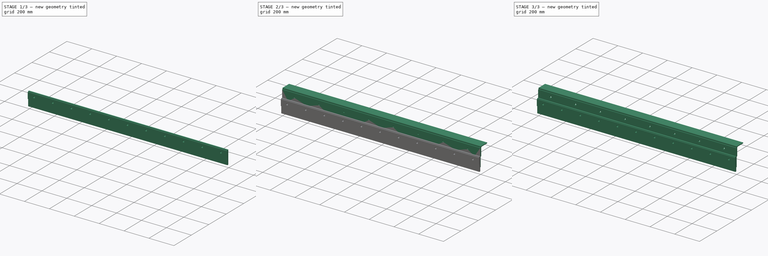
[diagram: build sequence overview — one tinted view per stage of 3, left to right]
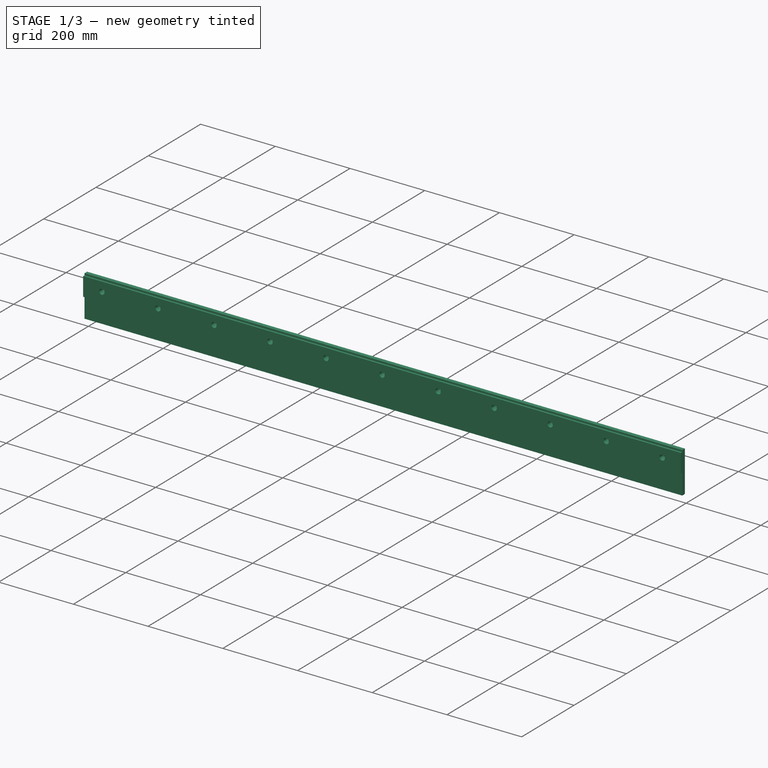
[diagram: stage 1 of 3 — iso view after this stage's code; geometry added in this stage tinted green]
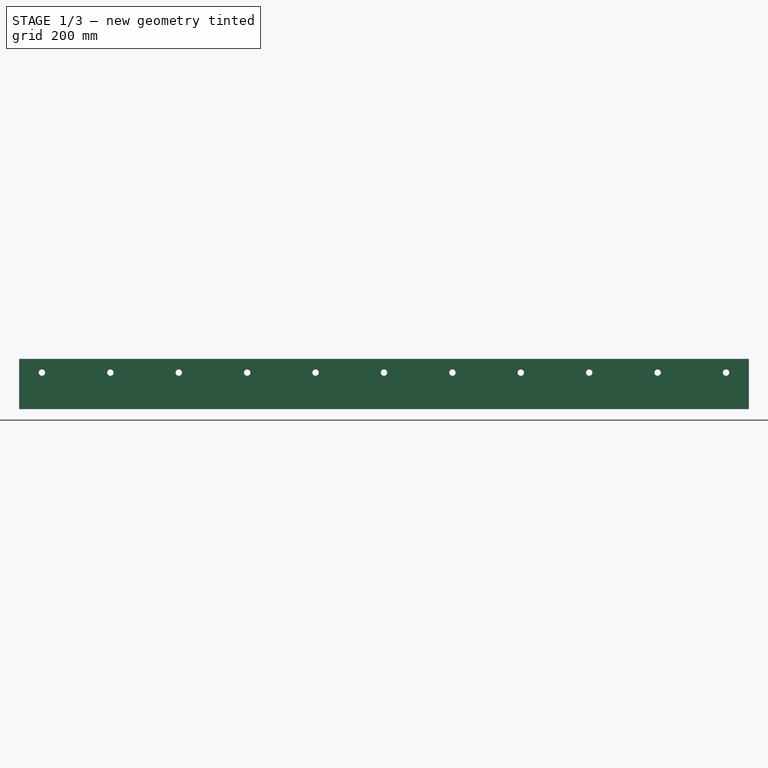
[diagram: stage 1 of 3 — front view after this stage's code; geometry added in this stage tinted green]
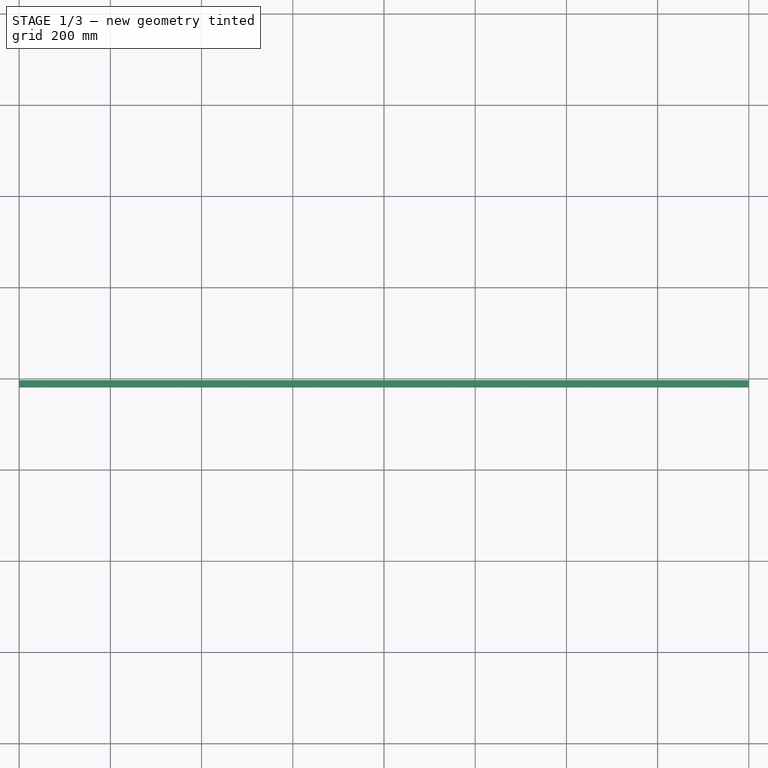
[diagram: stage 1 of 3 — top view after this stage's code; geometry added in this stage tinted green]
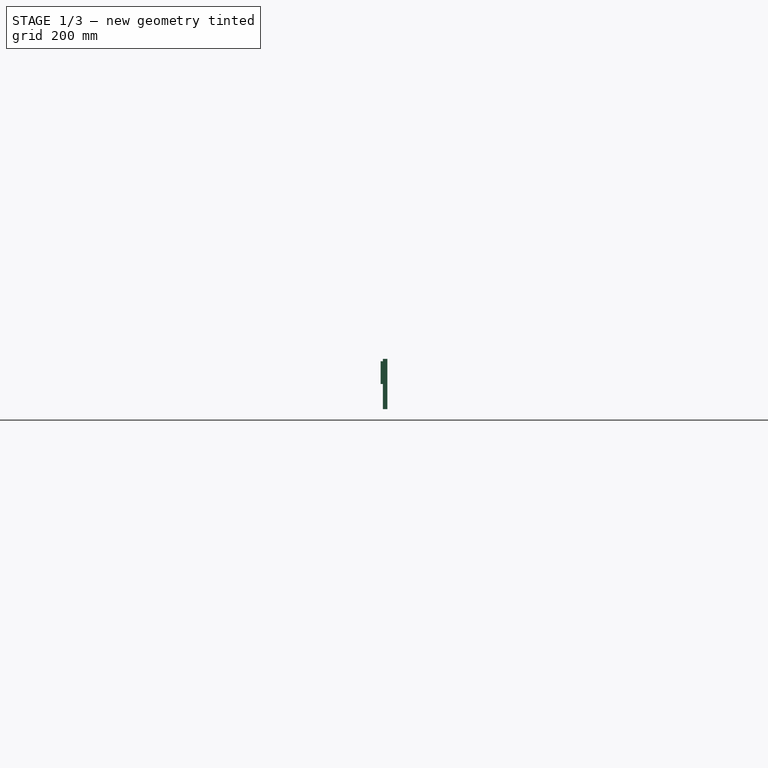
[diagram: stage 1 of 3 — right view after this stage's code; geometry added in this stage tinted green]
FCSTD DOCUMENT  (FreeCAD 0.21R33771 (Git))
Label: brade
License: All rights reserved
objects: Part::Extrusion×5, Sketcher::SketchObject×4, Part::FeaturePython×1, Part::Cut×1, App::Part×1
note: 11 computed .brp shape members not serialized (recipe doc carries the construction recipe); baked Part::Feature solids carry a one-line shape summary decoded from their .brp

FEATURE [Sketcher::SketchObject] Sketch002
  FullyConstrained = true
  Placement = pos=(0,0,0) rot=(1,0,0;1.5708rad)
  sketch-geometry (26):
    g0: LineSegment StartX=-800 StartY=-55 StartZ=0 EndX=-800 EndY=55 EndZ=0
    g1: LineSegment StartX=-800 StartY=55 StartZ=0 EndX=800 EndY=55 EndZ=0
    g2: LineSegment StartX=800 StartY=55 StartZ=0 EndX=800 EndY=-55 EndZ=0
    g3: LineSegment StartX=800 StartY=-55 StartZ=0 EndX=-800 EndY=-55 EndZ=0
    g4: GeomPoint X=0 Y=0 Z=0
    g5: Circle CenterX=-750 CenterY=25 CenterZ=0 NormalX=0 NormalY=0 NormalZ=1 AngleXU=0 Radius=7
    g6: Circle CenterX=-600 CenterY=25 CenterZ=0 NormalX=0 NormalY=0 NormalZ=1 AngleXU=0 Radius=7
    g7: LineSegment StartX=-750 StartY=25 StartZ=0 EndX=-600 EndY=25 EndZ=0
    g8: Circle CenterX=-450 CenterY=25 CenterZ=0 NormalX=0 NormalY=0 NormalZ=1 AngleXU=0 Radius=7
    g9: LineSegment StartX=-600 StartY=25 StartZ=0 EndX=-450 EndY=25 EndZ=0
    g10: Circle CenterX=-300 CenterY=25 CenterZ=0 NormalX=0 NormalY=0 NormalZ=1 AngleXU=0 Radius=7
    g11: LineSegment StartX=-450 StartY=25 StartZ=0 EndX=-300 EndY=25 EndZ=0
    g12: Circle CenterX=-150 CenterY=25 CenterZ=0 NormalX=0 NormalY=0 NormalZ=1 AngleXU=0 Radius=7
    g13: LineSegment StartX=-300 StartY=25 StartZ=0 EndX=-150 EndY=25 EndZ=0
    g14: Circle CenterX=1.11421e-10 CenterY=25 CenterZ=0 NormalX=0 NormalY=0 NormalZ=1 AngleXU=0 Radius=7
    g15: LineSegment StartX=-150 StartY=25 StartZ=0 EndX=1.11413e-10 EndY=25 EndZ=0
    g16: Circle CenterX=150 CenterY=25 CenterZ=0 NormalX=0 NormalY=0 NormalZ=1 AngleXU=0 Radius=7
    g17: LineSegment StartX=1.11421e-10 StartY=25 StartZ=0 EndX=150 EndY=25 EndZ=0
    g18: Circle CenterX=300 CenterY=25 CenterZ=0 NormalX=0 NormalY=0 NormalZ=1 AngleXU=0 Radius=7
    g19: LineSegment StartX=150 StartY=25 StartZ=0 EndX=300 EndY=25 EndZ=0
    g20: Circle CenterX=450 CenterY=25 CenterZ=0 NormalX=0 NormalY=0 NormalZ=1 AngleXU=0 Radius=7
    g21: LineSegment StartX=300 StartY=25 StartZ=0 EndX=450 EndY=25 EndZ=0
    g22: Circle CenterX=600 CenterY=25 CenterZ=0 NormalX=0 NormalY=0 NormalZ=1 AngleXU=0 Radius=7
    g23: LineSegment StartX=450 StartY=25 StartZ=0 EndX=600 EndY=25 EndZ=0
    g24: Circle CenterX=750 CenterY=25 CenterZ=0 NormalX=0 NormalY=0 NormalZ=1 AngleXU=0 Radius=7
    g25: LineSegment StartX=600 StartY=25 StartZ=0 EndX=750 EndY=25 EndZ=0
  constraints (65):
    c: Coincident(g0,g1)
    c: Coincident(g1,g2)
    c: Coincident(g2,g3)
    c: Coincident(g3,g0)
    c: Horizontal(g1)
    c: Horizontal(g3)
    c: Vertical(g0)
    c: Vertical(g2)
    c: Symmetric(g1,g0,g4)
    c: Coincident(g4,g-1)
    c: DistanceX(g1,g1) = 1600
    c: DistanceY(g2,g2) = 110
    c: Diameter(g5) = 14
    c: Distance(g5,g1) = 30
    c: Distance(g5,g0) = 50
    c: Equal(g5,g6) = 14
    c: Coincident(g5,g7)
    c: Coincident(g6,g7)
    c: Distance(g7) = 150
    c: Angle(g7) = 0
    c: Equal(g5,g8) = 14
    c: Coincident(g6,g9)
    c: Coincident(g8,g9)
    c: Equal(g7,g9)
    c: Parallel(g9,g7)
    c: Equal(g5,g10) = 14
    c: Coincident(g8,g11)
    c: Coincident(g10,g11)
    c: Equal(g7,g11)
    c: Parallel(g11,g7)
    c: Equal(g5,g12) = 14
    c: Coincident(g10,g13)
    c: Coincident(g12,g13)
    c: Equal(g7,g13)
    c: Parallel(g13,g7)
    c: Equal(g5,g14) = 14
    c: Coincident(g12,g15)
    c: Coincident(g14,g15)
    c: Equal(g7,g15)
    c: Parallel(g15,g7)
    c: Equal(g5,g16) = 14
    c: Coincident(g14,g17)
    c: Coincident(g16,g17)
    c: Equal(g7,g17)
    c: Parallel(g17,g7)
    c: Equal(g5,g18) = 14
    c: Coincident(g16,g19)
    c: Coincident(g18,g19)
    c: Equal(g7,g19)
    c: Parallel(g19,g7)
    c: Equal(g5,g20) = 14
    c: Coincident(g18,g21)
    c: Coincident(g20,g21)
    c: Equal(g7,g21)
    c: Parallel(g21,g7)
    c: Equal(g5,g22) = 14
    c: Coincident(g20,g23)
    c: Coincident(g22,g23)
    c: Equal(g7,g23)
    c: Parallel(g23,g7)
    c: Equal(g5,g24) = 14
    c: Coincident(g22,g25)
    c: Coincident(g24,g25)
    c: Equal(g7,g25)
    c: Parallel(g25,g7)
FEATURE [Part::Extrusion] Extrude003  label="rubberPlate"
  Base = -> Sketch002
  Dir = (0,-1,-3e-16)
  DirMode = 2
  FaceMakerClass = Part::FaceMakerBullseye
  LengthFwd = 10
  LengthRev = 0
  Placement = pos=(2.274e-13,-5,-125.45) rot=(0,0,1;0rad)
  Solid = true
  Symmetric = false
FEATURE [Sketcher::SketchObject] Sketch003
  FullyConstrained = true
  Placement = pos=(0,0,0) rot=(1,0,0;1.5708rad)
  sketch-geometry (26):
    g0: LineSegment StartX=-800 StartY=-25 StartZ=0 EndX=-800 EndY=25 EndZ=0
    g1: LineSegment StartX=-800 StartY=25 StartZ=0 EndX=800 EndY=25 EndZ=0
    g2: LineSegment StartX=800 StartY=25 StartZ=0 EndX=800 EndY=-25 EndZ=0
    g3: LineSegment StartX=800 StartY=-25 StartZ=0 EndX=-800 EndY=-25 EndZ=0
    g4: GeomPoint X=0 Y=0 Z=0
    g5: Circle CenterX=-750 CenterY=0 CenterZ=0 NormalX=0 NormalY=0 NormalZ=1 AngleXU=0 Radius=7
    g6: Circle CenterX=-600 CenterY=0 CenterZ=0 NormalX=0 NormalY=0 NormalZ=1 AngleXU=0 Radius=7
    g7: LineSegment StartX=-750 StartY=0 StartZ=0 EndX=-600 EndY=0 EndZ=0
    g8: Circle CenterX=-450 CenterY=0 CenterZ=0 NormalX=0 NormalY=0 NormalZ=1 AngleXU=0 Radius=7
    g9: LineSegment StartX=-600 StartY=0 StartZ=0 EndX=-450 EndY=0 EndZ=0
    g10: Circle CenterX=-300 CenterY=0 CenterZ=0 NormalX=0 NormalY=0 NormalZ=1 AngleXU=0 Radius=7
    g11: LineSegment StartX=-450 StartY=0 StartZ=0 EndX=-300 EndY=0 EndZ=0
    g12: Circle CenterX=-150 CenterY=0 CenterZ=0 NormalX=0 NormalY=0 NormalZ=1 AngleXU=0 Radius=7
    g13: LineSegment StartX=-300 StartY=0 StartZ=0 EndX=-150 EndY=0 EndZ=0
    g14: Circle CenterX=5.68e-14 CenterY=0 CenterZ=0 NormalX=0 NormalY=0 NormalZ=1 AngleXU=0 Radius=7
    g15: LineSegment StartX=-150 StartY=0 StartZ=0 EndX=5.68e-14 EndY=0 EndZ=0
    g16: Circle CenterX=150 CenterY=0 CenterZ=0 NormalX=0 NormalY=0 NormalZ=1 AngleXU=0 Radius=7
    g17: LineSegment StartX=5.68e-14 StartY=0 StartZ=0 EndX=150 EndY=0 EndZ=0
    g18: Circle CenterX=300 CenterY=0 CenterZ=0 NormalX=0 NormalY=0 NormalZ=1 AngleXU=0 Radius=7
    g19: LineSegment StartX=150 StartY=0 StartZ=0 EndX=300 EndY=0 EndZ=0
    g20: Circle CenterX=450 CenterY=0 CenterZ=0 NormalX=0 NormalY=0 NormalZ=1 AngleXU=0 Radius=7
    g21: LineSegment StartX=300 StartY=0 StartZ=0 EndX=450 EndY=0 EndZ=0
    g22: Circle CenterX=600 CenterY=0 CenterZ=0 NormalX=0 NormalY=0 NormalZ=1 AngleXU=0 Radius=7
    g23: LineSegment StartX=450 StartY=0 StartZ=0 EndX=600 EndY=0 EndZ=0
    g24: Circle CenterX=750 CenterY=0 CenterZ=0 NormalX=0 NormalY=0 NormalZ=1 AngleXU=0 Radius=7
    g25: LineSegment StartX=600 StartY=0 StartZ=0 EndX=750 EndY=0 EndZ=0
  constraints (65):
    c: Coincident(g0,g1)
    c: Coincident(g1,g2)
    c: Coincident(g2,g3)
    c: Coincident(g3,g0)
    c: Horizontal(g1)
    c: Horizontal(g3)
    c: Vertical(g0)
    c: Vertical(g2)
    c: Symmetric(g1,g0,g4)
    c: Coincident(g4,g-1)
    c: DistanceX(g1,g1) = 1600
    c: DistanceY(g2,g2) = 50
    c: PointOnObject(g5,g-1)
    c: Diameter(g5) = 14
    c: DistanceX(g0,g5) = 50
    c: Equal(g5,g6) = 14
    c: Coincident(g5,g7)
    c: Coincident(g6,g7)
    c: Distance(g7) = 150
    c: Angle(g7) = 0
    c: Equal(g5,g8) = 14
    c: Coincident(g6,g9)
    c: Coincident(g8,g9)
    c: Equal(g7,g9)
    c: Parallel(g9,g7)
    c: Equal(g5,g10) = 14
    c: Coincident(g8,g11)
    c: Coincident(g10,g11)
    c: Equal(g7,g11)
    c: Parallel(g11,g7)
    c: Equal(g5,g12) = 14
    c: Coincident(g10,g13)
    c: Coincident(g12,g13)
    c: Equal(g7,g13)
    c: Parallel(g13,g7)
    c: Equal(g5,g14) = 14
    c: Coincident(g12,g15)
    c: Coincident(g14,g15)
    c: Equal(g7,g15)
    c: Parallel(g15,g7)
    c: Equal(g5,g16) = 14
    c: Coincident(g14,g17)
    c: Coincident(g16,g17)
    c: Equal(g7,g17)
    c: Parallel(g17,g7)
    c: Equal(g5,g18) = 14
    c: Coincident(g16,g19)
    c: Coincident(g18,g19)
    c: Equal(g7,g19)
    c: Parallel(g19,g7)
    c: Equal(g5,g20) = 14
    c: Coincident(g18,g21)
    c: Coincident(g20,g21)
    c: Equal(g7,g21)
    c: Parallel(g21,g7)
    c: Equal(g5,g22) = 14
    c: Coincident(g20,g23)
    c: Coincident(g22,g23)
    c: Equal(g7,g23)
    c: Parallel(g23,g7)
    c: Equal(g5,g24) = 14
    c: Coincident(g22,g25)
    c: Coincident(g24,g25)
    c: Equal(g7,g25)
    c: Parallel(g25,g7)
FEATURE [Part::Extrusion] Extrude004  label="plate_2"
  Base = -> Sketch003
  Dir = (0,-1,-3e-16)
  DirMode = 2
  FaceMakerClass = Part::FaceMakerBullseye
  LengthFwd = 5
  LengthRev = 0
  Placement = pos=(0,-15,-100.45) rot=(0,0,1;0rad)
  Solid = true
  Symmetric = false
FEATURE [App::Part] Part  label="blade"
  Group = -> [AngleSteel,Extrude,Extrude001,Sketch,Cut,Sketch001,Extrude002,Sketch002,Extrude003,Sketch003,Extrude004]
  Origin = -> Origin
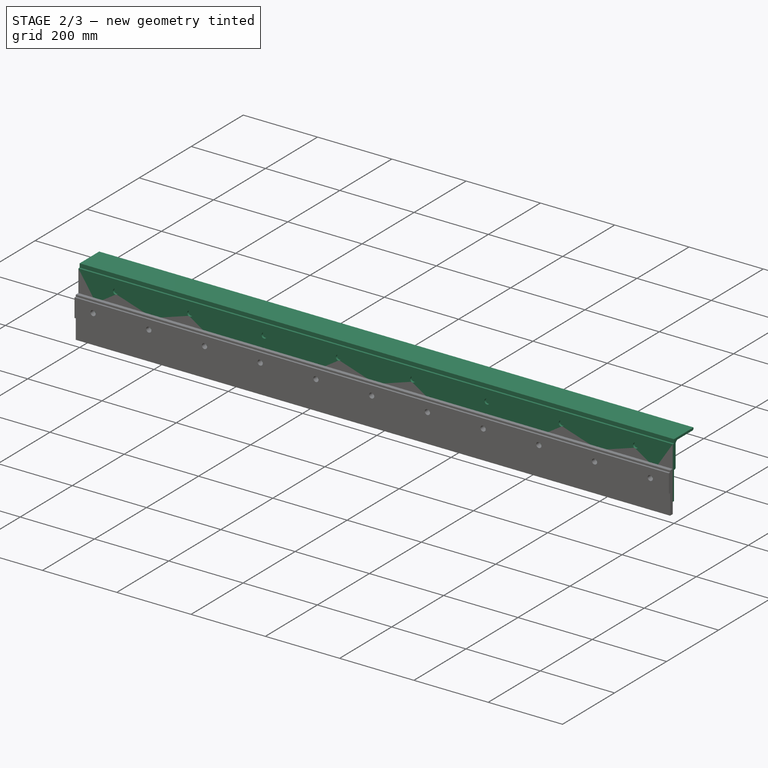
[diagram: stage 2 of 3 — iso view after this stage's code; geometry added in this stage tinted green]
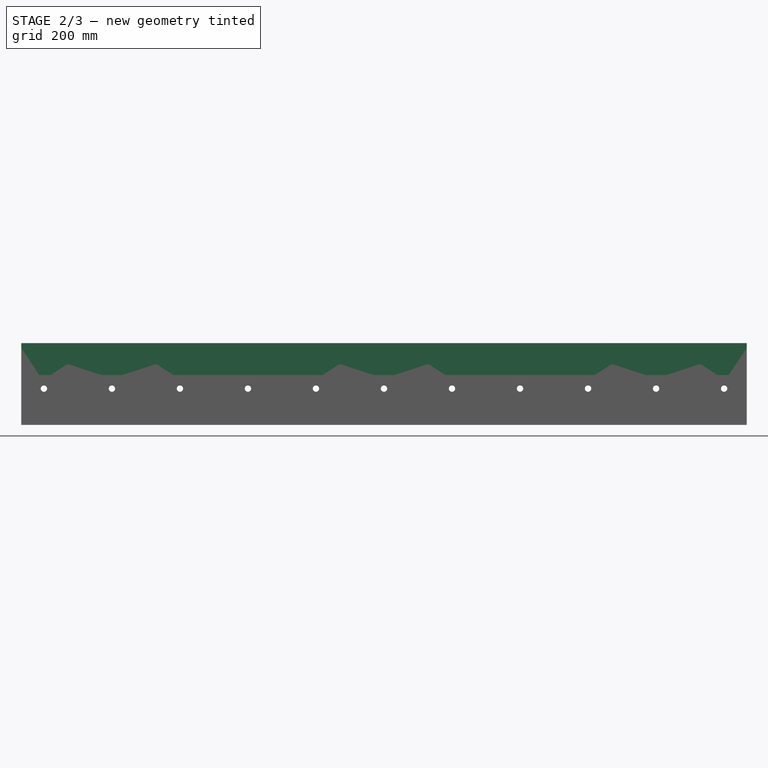
[diagram: stage 2 of 3 — front view after this stage's code; geometry added in this stage tinted green]
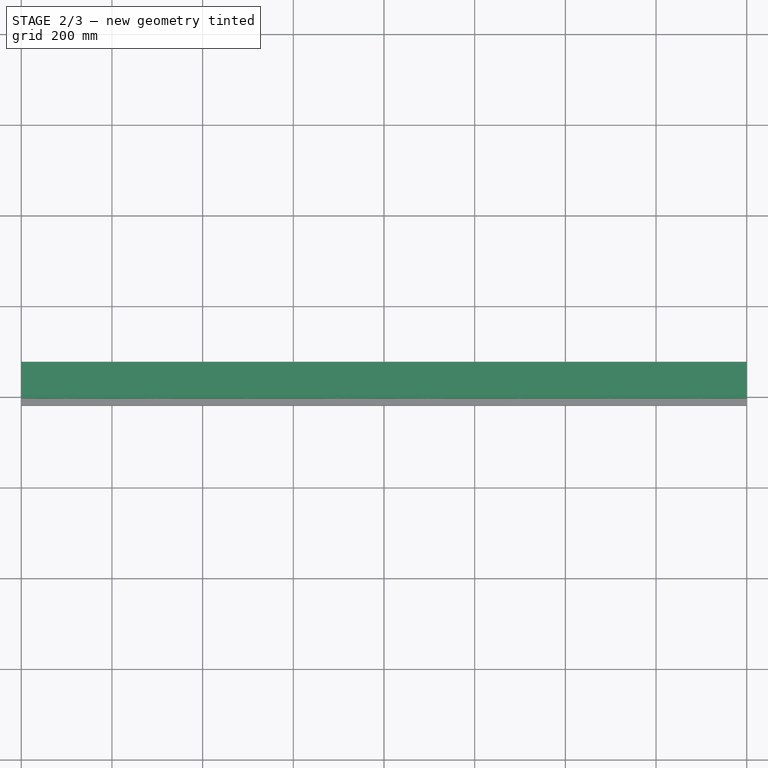
[diagram: stage 2 of 3 — top view after this stage's code; geometry added in this stage tinted green]
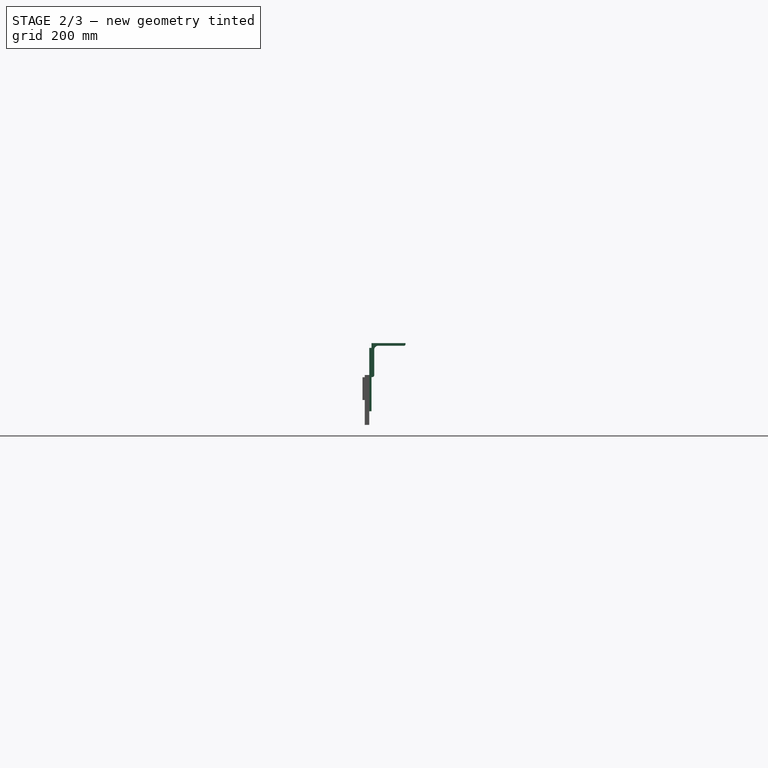
[diagram: stage 2 of 3 — right view after this stage's code; geometry added in this stage tinted green]
FEATURE [Part::FeaturePython] AngleSteel  # WARN: FeaturePython — macro-defined, semantics opaque (R4)
  A = 75
  B = 75
  L = 1000
  Placement = pos=(0,0,0) rot=(0.707107,0.707107,0;3.14159rad)
  Solid = false
  g0 = 7.85
  mass = 0
  size = 10
  standard = SS_Equal
  t = 6
FEATURE [Part::Extrusion] Extrude
  Base = -> AngleSteel
  Dir = (1,4e-16,1e-16)
  DirMode = 2
  FaceMakerClass = Part::FaceMakerBullseye
  LengthFwd = 1600
  LengthRev = 0
  Solid = false
  Symmetric = true
FEATURE [Sketcher::SketchObject] Sketch001
  FullyConstrained = false
  Placement = pos=(0,0,0) rot=(1,0,0;1.5708rad)
  sketch-geometry (67):
    g0: LineSegment StartX=-800 StartY=-70 StartZ=0 EndX=-800 EndY=70 EndZ=0
    g1: LineSegment StartX=-800 StartY=70 StartZ=0 EndX=800 EndY=70 EndZ=0
    g2: LineSegment StartX=800 StartY=70 StartZ=0 EndX=800 EndY=-70 EndZ=0
    g3: LineSegment StartX=800 StartY=-70 StartZ=0 EndX=-800 EndY=-70 EndZ=0
    g4: GeomPoint X=0 Y=0 Z=0
    g5: Circle CenterX=-700 CenterY=40 CenterZ=0 NormalX=0 NormalY=0 NormalZ=1 AngleXU=0 Radius=7
    g6: Circle CenterX=100 CenterY=40 CenterZ=0 NormalX=0 NormalY=0 NormalZ=1 AngleXU=0 Radius=7
    g7: Circle CenterX=-500 CenterY=40 CenterZ=0 NormalX=0 NormalY=0 NormalZ=1 AngleXU=0 Radius=7
    g8: Circle CenterX=-300 CenterY=40 CenterZ=0 NormalX=0 NormalY=0 NormalZ=1 AngleXU=0 Radius=7
    g9: Circle CenterX=-100 CenterY=40 CenterZ=0 NormalX=0 NormalY=0 NormalZ=1 AngleXU=0 Radius=7
    g10: Circle CenterX=300 CenterY=40 CenterZ=0 NormalX=0 NormalY=0 NormalZ=1 AngleXU=0 Radius=7
    g11: Circle CenterX=500 CenterY=40 CenterZ=0 NormalX=0 NormalY=0 NormalZ=1 AngleXU=0 Radius=7
    g12: Circle CenterX=700 CenterY=40 CenterZ=0 NormalX=0 NormalY=0 NormalZ=1 AngleXU=0 Radius=7
    g13: LineSegment StartX=-743 StartY=5 StartZ=0 EndX=-743 EndY=-45 EndZ=0
    g14: ArcOfCircle CenterX=-750 CenterY=-45 CenterZ=0 NormalX=0 NormalY=0 NormalZ=1 AngleXU=0 Radius=7 StartAngle=3.14159 EndAngle=6.28319
    g15: LineSegment StartX=-757 StartY=-45 StartZ=0 EndX=-757 EndY=5 EndZ=0
    g16: ArcOfCircle CenterX=-750 CenterY=5 CenterZ=0 NormalX=0 NormalY=0 NormalZ=1 AngleXU=0 Radius=7 StartAngle=2e-16 EndAngle=3.14159
    g17: LineSegment StartX=-593 StartY=5 StartZ=0 EndX=-593 EndY=-45 EndZ=0
    g18: ArcOfCircle CenterX=-600 CenterY=-45 CenterZ=0 NormalX=0 NormalY=0 NormalZ=1 AngleXU=0 Radius=7 StartAngle=3.14159 EndAngle=6.28319
    g19: LineSegment StartX=-607 StartY=-45 StartZ=0 EndX=-607 EndY=5 EndZ=0
    g20: ArcOfCircle CenterX=-600 CenterY=5 CenterZ=0 NormalX=0 NormalY=0 NormalZ=1 AngleXU=0 Radius=7 StartAngle=1e-16 EndAngle=3.14159
    g21: LineSegment StartX=-743 StartY=5 StartZ=0 EndX=-593 EndY=5 EndZ=0
    g22: LineSegment StartX=-443 StartY=5 StartZ=0 EndX=-443 EndY=-45 EndZ=0
    g23: ArcOfCircle CenterX=-450 CenterY=-45 CenterZ=0 NormalX=0 NormalY=0 NormalZ=1 AngleXU=0 Radius=7 StartAngle=3.14159 EndAngle=6.28319
    g24: LineSegment StartX=-457 StartY=-45 StartZ=0 EndX=-457 EndY=5 EndZ=0
    g25: ArcOfCircle CenterX=-450 CenterY=5 CenterZ=0 NormalX=0 NormalY=0 NormalZ=1 AngleXU=0 Radius=7 StartAngle=1e-16 EndAngle=3.14159
    g26: LineSegment StartX=-593 StartY=5 StartZ=0 EndX=-443 EndY=5 EndZ=0
    g27: LineSegment StartX=-293 StartY=5 StartZ=0 EndX=-293 EndY=-45 EndZ=0
    g28: ArcOfCircle CenterX=-300 CenterY=-45 CenterZ=0 NormalX=0 NormalY=0 NormalZ=1 AngleXU=0 Radius=7 StartAngle=3.14159 EndAngle=6.28319
    g29: LineSegment StartX=-307 StartY=-45 StartZ=0 EndX=-307 EndY=5 EndZ=0
    g30: ArcOfCircle CenterX=-300 CenterY=5 CenterZ=0 NormalX=0 NormalY=0 NormalZ=1 AngleXU=0 Radius=7 StartAngle=1e-16 EndAngle=3.14159
    g31: LineSegment StartX=-443 StartY=5 StartZ=0 EndX=-293 EndY=5 EndZ=0
    g32: LineSegment StartX=-143 StartY=5 StartZ=0 EndX=-143 EndY=-45 EndZ=0
    g33: ArcOfCircle CenterX=-150 CenterY=-45 CenterZ=0 NormalX=0 NormalY=0 NormalZ=1 AngleXU=0 Radius=7 StartAngle=3.14159 EndAngle=6.28319
    g34: LineSegment StartX=-157 StartY=-45 StartZ=0 EndX=-157 EndY=5 EndZ=0
    g35: ArcOfCircle CenterX=-150 CenterY=5 CenterZ=0 NormalX=0 NormalY=0 NormalZ=1 AngleXU=0 Radius=7 StartAngle=1e-16 EndAngle=3.14159
    g36: LineSegment StartX=-293 StartY=5 StartZ=0 EndX=-143 EndY=5 EndZ=0
    g37: LineSegment StartX=7 StartY=5 StartZ=0 EndX=7 EndY=-45 EndZ=0
    g38: ArcOfCircle CenterX=-3.42e-14 CenterY=-45 CenterZ=0 NormalX=0 NormalY=0 NormalZ=1 AngleXU=0 Radius=7 StartAngle=3.14159 EndAngle=6.28319
    g39: LineSegment StartX=-7 StartY=-45 StartZ=0 EndX=-7 EndY=5 EndZ=0
    g40: ArcOfCircle CenterX=-3.42e-14 CenterY=5 CenterZ=0 NormalX=0 NormalY=0 NormalZ=1 AngleXU=0 Radius=7 StartAngle=1e-16 EndAngle=3.14159
    g41: LineSegment StartX=-143 StartY=5 StartZ=0 EndX=7 EndY=5 EndZ=0
    g42: LineSegment StartX=157 StartY=5 StartZ=0 EndX=157 EndY=-45 EndZ=0
    g43: ArcOfCircle CenterX=150 CenterY=-45 CenterZ=0 NormalX=0 NormalY=0 NormalZ=1 AngleXU=0 Radius=7 StartAngle=3.14159 EndAngle=6.28319
    g44: LineSegment StartX=143 StartY=-45 StartZ=0 EndX=143 EndY=5 EndZ=0
    g45: ArcOfCircle CenterX=150 CenterY=5 CenterZ=0 NormalX=0 NormalY=0 NormalZ=1 AngleXU=0 Radius=7 StartAngle=1e-16 EndAngle=3.14159
    g46: LineSegment StartX=7 StartY=5 StartZ=0 EndX=157 EndY=5 EndZ=0
    g47: LineSegment StartX=307 StartY=5 StartZ=0 EndX=307 EndY=-45 EndZ=0
    g48: ArcOfCircle CenterX=300 CenterY=-45 CenterZ=0 NormalX=0 NormalY=0 NormalZ=1 AngleXU=0 Radius=7 StartAngle=3.14159 EndAngle=6.28319
    g49: LineSegment StartX=293 StartY=-45 StartZ=0 EndX=293 EndY=5 EndZ=0
    g50: ArcOfCircle CenterX=300 CenterY=5 CenterZ=0 NormalX=0 NormalY=0 NormalZ=1 AngleXU=0 Radius=7 StartAngle=1e-16 EndAngle=3.14159
    g51: LineSegment StartX=157 StartY=5 StartZ=0 EndX=307 EndY=5 EndZ=0
    g52: LineSegment StartX=457 StartY=5 StartZ=0 EndX=457 EndY=-45 EndZ=0
    g53: ArcOfCircle CenterX=450 CenterY=-45 CenterZ=0 NormalX=0 NormalY=0 NormalZ=1 AngleXU=0 Radius=7 StartAngle=3.14159 EndAngle=6.28319
    g54: LineSegment StartX=443 StartY=-45 StartZ=0 EndX=443 EndY=5 EndZ=0
    g55: ArcOfCircle CenterX=450 CenterY=5 CenterZ=0 NormalX=0 NormalY=0 NormalZ=1 AngleXU=0 Radius=7 StartAngle=2e-16 EndAngle=3.14159
    g56: LineSegment StartX=307 StartY=5 StartZ=0 EndX=457 EndY=5 EndZ=0
    g57: LineSegment StartX=607 StartY=5 StartZ=0 EndX=607 EndY=-45 EndZ=0
    g58: ArcOfCircle CenterX=600 CenterY=-45 CenterZ=0 NormalX=0 NormalY=0 NormalZ=1 AngleXU=0 Radius=7 StartAngle=3.14159 EndAngle=6.28319
    g59: LineSegment StartX=593 StartY=-45 StartZ=0 EndX=593 EndY=5 EndZ=0
    g60: ArcOfCircle CenterX=600 CenterY=5 CenterZ=0 NormalX=0 NormalY=0 NormalZ=1 AngleXU=0 Radius=7 StartAngle=1e-16 EndAngle=3.14159
    g61: LineSegment StartX=457 StartY=5 StartZ=0 EndX=607 EndY=5 EndZ=0
    g62: LineSegment StartX=757 StartY=5 StartZ=0 EndX=757 EndY=-45 EndZ=0
    g63: ArcOfCircle CenterX=750 CenterY=-45 CenterZ=0 NormalX=0 NormalY=0 NormalZ=1 AngleXU=0 Radius=7 StartAngle=3.14159 EndAngle=6.28319
    g64: LineSegment StartX=743 StartY=-45 StartZ=0 EndX=743 EndY=5 EndZ=0
    g65: ArcOfCircle CenterX=750 CenterY=5 CenterZ=0 NormalX=0 NormalY=0 NormalZ=1 AngleXU=0 Radius=7 StartAngle=1e-16 EndAngle=3.14159
    g66: LineSegment StartX=607 StartY=5 StartZ=0 EndX=757 EndY=5 EndZ=0
  constraints (160):
    c: Coincident(g0,g1)
    c: Coincident(g1,g2)
    c: Coincident(g2,g3)
    c: Coincident(g3,g0)
    c: Horizontal(g1)
    c: Horizontal(g3)
    c: Vertical(g0)
    c: Vertical(g2)
    c: Symmetric(g1,g0,g4)
    c: Coincident(g4,g-1)
    c: DistanceX(g1,g1) = 1600
    c: DistanceY(g2,g2) = 140
    c: Diameter(g5) = 14
    c: Diameter(g6) = 14
    c: DistanceX(g0,g5) = 100
    c: Distance(g5,g1) = 30
    c: Distance(g6,g1) = 30
    c: Equal(g5,g7) = 14
    c: Equal(g5,g8) = 14
    c: Equal(g5,g9) = 14
    c: Equal(g5,g10) = 14
    c: Equal(g5,g11) = 14
    c: Equal(g5,g12) = 14
    c: DistanceX(g5,g7) = 200
    c: DistanceX(g7,g8) = 200
    c: DistanceX(g8,g9) = 200
    c: DistanceX(g9,g6) = 200
    c: DistanceX(g6,g10) = 200
    c: DistanceX(g10,g11) = 200
    c: DistanceX(g11,g12) = 200
    c: Vertical(g13)
    c: Tangent(g13,g14) = 1.5708
    c: Vertical(g15)
    c: Tangent(g15,g16) = 1.5708
    c: DistanceY(g15,g15) = 50
    c: Tangent(g16,g13) = 1.5708
    c: Tangent(g14,g15) = 1.5708
    c: DistanceX(g15,g13) = 14
    c: Distance(g14,g3) = 25
    c: Distance(g14,g0) = 50
    c: Vertical(g17)
    c: Tangent(g17,g18) = 1.5708
    c: Vertical(g19)
    c: Tangent(g19,g20) = 1.5708
    c: Equal(g15,g19) = 50
    c: Tangent(g20,g17) = 1.5708
    c: Tangent(g18,g19) = 1.5708
    c: DistanceX(g19,g17) = 14
    c: Coincident(g13,g21)
    c: Coincident(g17,g21)
    c: Distance(g21) = 150
    c: Angle(g21) = 0
    c: Vertical(g22)
    c: Tangent(g22,g23) = 1.5708
    c: Vertical(g24)
    c: Tangent(g24,g25) = 1.5708
    c: Equal(g15,g24) = 50
    c: Tangent(g25,g22) = 1.5708
    c: Tangent(g23,g24) = 1.5708
    c: DistanceX(g24,g22) = 14
    c: Coincident(g17,g26)
    c: Coincident(g22,g26)
    c: Equal(g21,g26)
    c: Parallel(g26,g21)
    c: Vertical(g27)
    c: Tangent(g27,g28) = 1.5708
    c: Vertical(g29)
    c: Tangent(g29,g30) = 1.5708
    c: Equal(g15,g29) = 50
    c: Tangent(g30,g27) = 1.5708
    c: Tangent(g28,g29) = 1.5708
    c: DistanceX(g29,g27) = 14
    c: Coincident(g22,g31)
    c: Coincident(g27,g31)
    c: Equal(g21,g31)
    c: Parallel(g31,g21)
    c: Vertical(g32)
    c: Tangent(g32,g33) = 1.5708
    c: Vertical(g34)
    c: Tangent(g34,g35) = 1.5708
    c: Equal(g15,g34) = 50
    c: Tangent(g35,g32) = 1.5708
    c: Tangent(g33,g34) = 1.5708
    c: DistanceX(g34,g32) = 14
    c: Coincident(g27,g36)
    c: Coincident(g32,g36)
    c: Equal(g21,g36)
    c: Parallel(g36,g21)
    c: Vertical(g37)
    c: Tangent(g37,g38) = 1.5708
    c: Vertical(g39)
    c: Tangent(g39,g40) = 1.5708
    c: Equal(g15,g39) = 50
    c: Tangent(g40,g37) = 1.5708
    c: Tangent(g38,g39) = 1.5708
    c: DistanceX(g39,g37) = 14
    c: Coincident(g32,g41)
    c: Coincident(g37,g41)
    c: Equal(g21,g41)
    c: Parallel(g41,g21)
    c: Vertical(g42)
    c: Tangent(g42,g43) = 1.5708
    c: Vertical(g44)
    c: Tangent(g44,g45) = 1.5708
    c: Equal(g15,g44) = 50
    c: Tangent(g45,g42) = 1.5708
    c: Tangent(g43,g44) = 1.5708
    c: DistanceX(g44,g42) = 14
    c: Coincident(g37,g46)
    c: Coincident(g42,g46)
    c: Equal(g21,g46)
    c: Parallel(g46,g21)
    c: Vertical(g47)
    c: Tangent(g47,g48) = 1.5708
    c: Vertical(g49)
    c: Tangent(g49,g50) = 1.5708
    c: Equal(g15,g49) = 50
    c: Tangent(g50,g47) = 1.5708
    c: Tangent(g48,g49) = 1.5708
    c: DistanceX(g49,g47) = 14
    c: Coincident(g42,g51)
    c: Coincident(g47,g51)
    c: Equal(g21,g51)
    c: Parallel(g51,g21)
    c: Vertical(g52)
    c: Tangent(g52,g53) = 1.5708
    c: Vertical(g54)
    c: Tangent(g54,g55) = 1.5708
    c: Equal(g15,g54) = 50
    c: Tangent(g55,g52) = 1.5708
    c: Tangent(g53,g54) = 1.5708
    c: DistanceX(g54,g52) = 14
    c: Coincident(g47,g56)
    c: Coincident(g52,g56)
    c: Equal(g21,g56)
    c: Parallel(g56,g21)
    c: Vertical(g57)
    c: Tangent(g57,g58) = 1.5708
    c: Vertical(g59)
    c: Tangent(g59,g60) = 1.5708
    c: Equal(g15,g59) = 50
    c: Tangent(g60,g57) = 1.5708
    c: Tangent(g58,g59) = 1.5708
    c: DistanceX(g59,g57) = 14
    c: Coincident(g52,g61)
    c: Coincident(g57,g61)
    c: Equal(g21,g61)
    c: Parallel(g61,g21)
    c: Vertical(g62)
    c: Tangent(g62,g63) = 1.5708
    c: Vertical(g64)
    c: Tangent(g64,g65) = 1.5708
    c: Equal(g15,g64) = 50
    c: Tangent(g65,g62) = 1.5708
    c: Tangent(g63,g64) = 1.5708
    c: DistanceX(g64,g62) = 14
    c: Coincident(g57,g66)
    c: Coincident(g62,g66)
    c: Equal(g21,g66)
    c: Parallel(g66,g21)
FEATURE [Part::Extrusion] Extrude002  label="plate_1"
  Base = -> Sketch001
  Dir = (0,-1,-6e-16)
  DirMode = 2
  FaceMakerClass = Part::FaceMakerBullseye
  LengthFwd = 5
  LengthRev = 0
  Placement = pos=(1.137e-13,-2.99e-13,-80.4478) rot=(0,0,1;0rad)
  Solid = true
  Symmetric = false
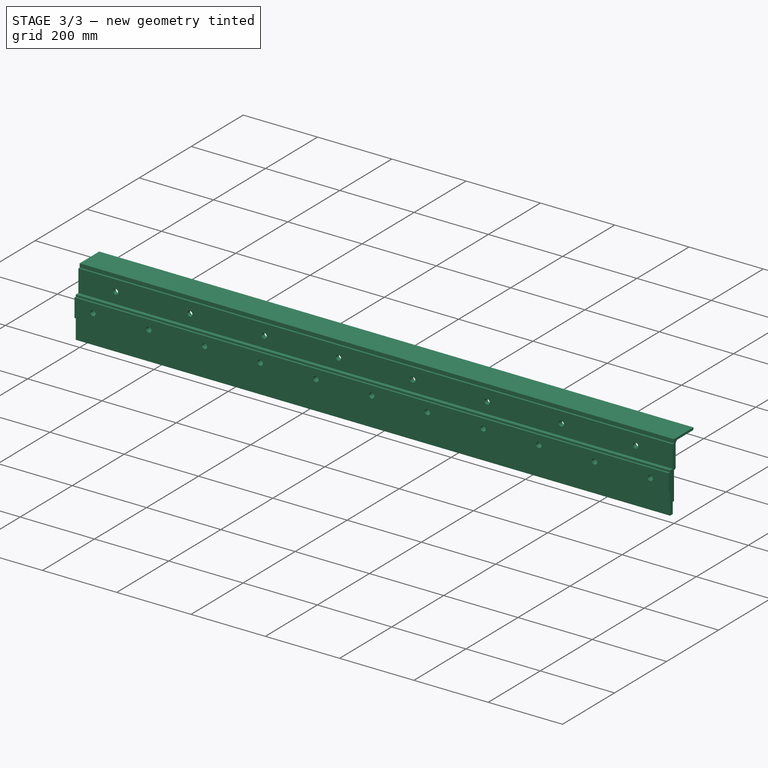
[diagram: stage 3 of 3 — iso view after this stage's code; geometry added in this stage tinted green]
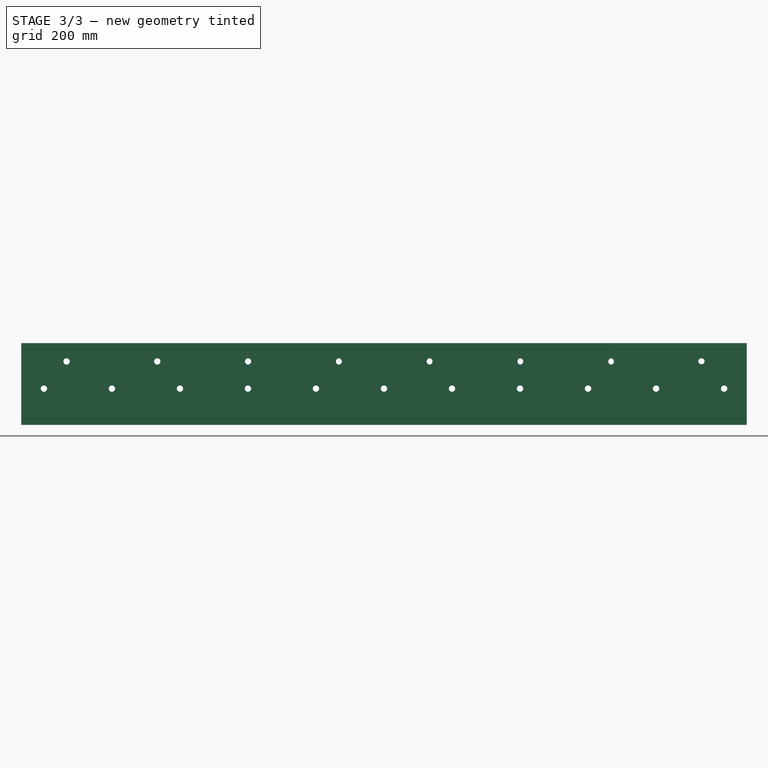
[diagram: stage 3 of 3 — front view after this stage's code; geometry added in this stage tinted green]
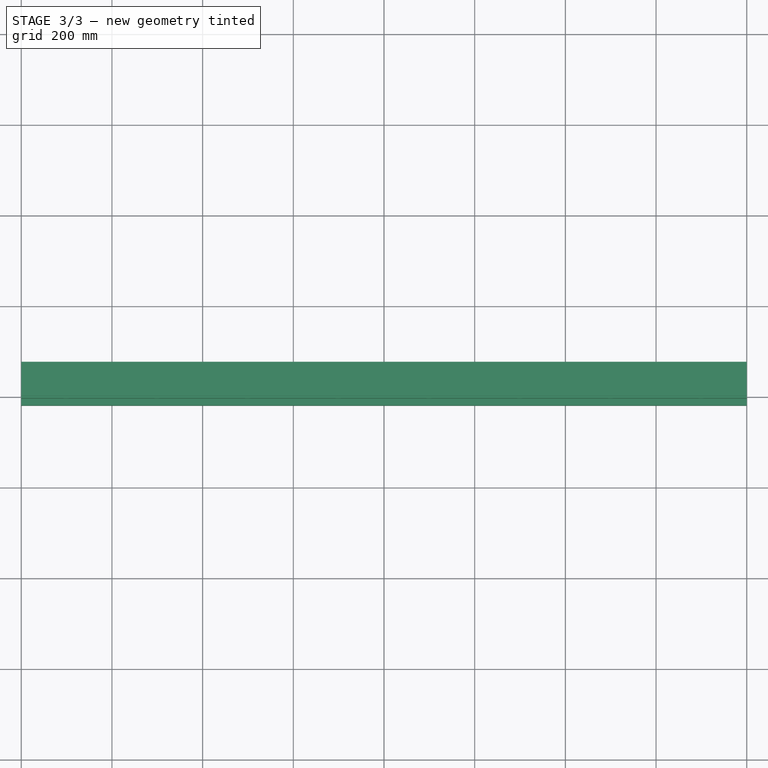
[diagram: stage 3 of 3 — top view after this stage's code; geometry added in this stage tinted green]
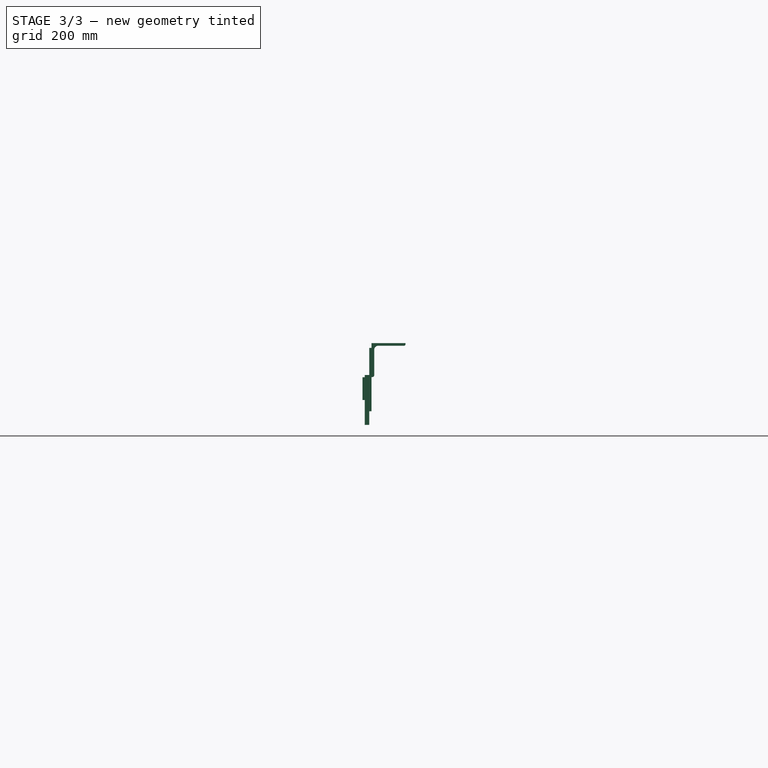
[diagram: stage 3 of 3 — right view after this stage's code; geometry added in this stage tinted green]
FEATURE [Sketcher::SketchObject] Sketch
  ExternalGeometry = -> [Extrude]
  FullyConstrained = false
  MapMode = 5
  Placement = pos=(0,0,0) rot=(1,0,0;1.5708rad)
  Support = -> [Extrude]
  sketch-geometry (8):
    g0: Circle CenterX=-700 CenterY=-40.4478 CenterZ=0 NormalX=0 NormalY=0 NormalZ=1 AngleXU=0 Radius=7
    g1: Circle CenterX=700 CenterY=-39.6228 CenterZ=0 NormalX=0 NormalY=0 NormalZ=1 AngleXU=0 Radius=7
    g2: Circle CenterX=-500 CenterY=-40.4478 CenterZ=0 NormalX=0 NormalY=0 NormalZ=1 AngleXU=0 Radius=7
    g3: Circle CenterX=-299.492 CenterY=-40.4478 CenterZ=0 NormalX=0 NormalY=0 NormalZ=1 AngleXU=0 Radius=7
    g4: Circle CenterX=-99.2385 CenterY=-40.4478 CenterZ=0 NormalX=0 NormalY=0 NormalZ=1 AngleXU=0 Radius=7
    g5: Circle CenterX=101.015 CenterY=-40.4478 CenterZ=0 NormalX=0 NormalY=0 NormalZ=1 AngleXU=0 Radius=7
    g6: Circle CenterX=301.269 CenterY=-40.4478 CenterZ=0 NormalX=0 NormalY=0 NormalZ=1 AngleXU=0 Radius=7
    g7: Circle CenterX=501.523 CenterY=-40.4478 CenterZ=0 NormalX=0 NormalY=0 NormalZ=1 AngleXU=0 Radius=7
  constraints (11):
    c: Diameter(g0) = 14
    c: Diameter(g1) = 14
    c: DistanceX(g-3,g0) = 100
    c: DistanceX(g1,g-4) = 100
    c: Equal(g0,g2) = 14
    c: Equal(g0,g3) = 14
    c: Equal(g0,g4) = 14
    c: Equal(g0,g5) = 14
    c: Equal(g0,g6) = 14
    c: Equal(g0,g7) = 14
    c: DistanceX(g0,g2) = 200
FEATURE [Part::Extrusion] Extrude001
  Base = -> Sketch
  Dir = (4e-16,-1,2e-16)
  DirMode = 2
  FaceMakerClass = Part::FaceMakerBullseye
  LengthFwd = 10
  LengthRev = 0
  Reversed = true
  Solid = true
  Symmetric = false
FEATURE [Part::Cut] Cut  label="angle"
  Base = -> Extrude
  Tool = -> Extrude001
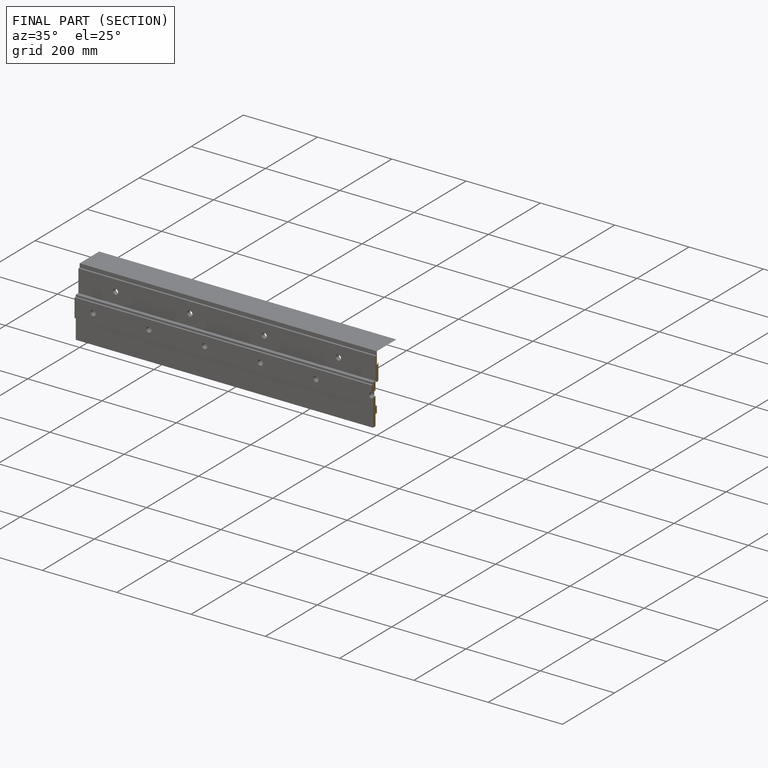
[diagram: finished part — half-section view (interior)]
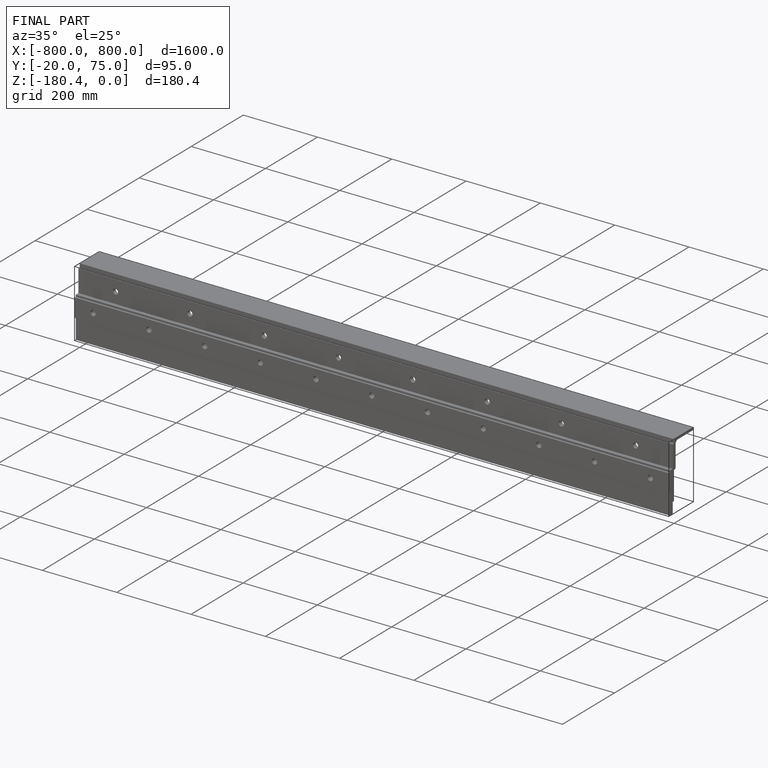
[diagram: finished part — iso view with bounding-box wireframe]
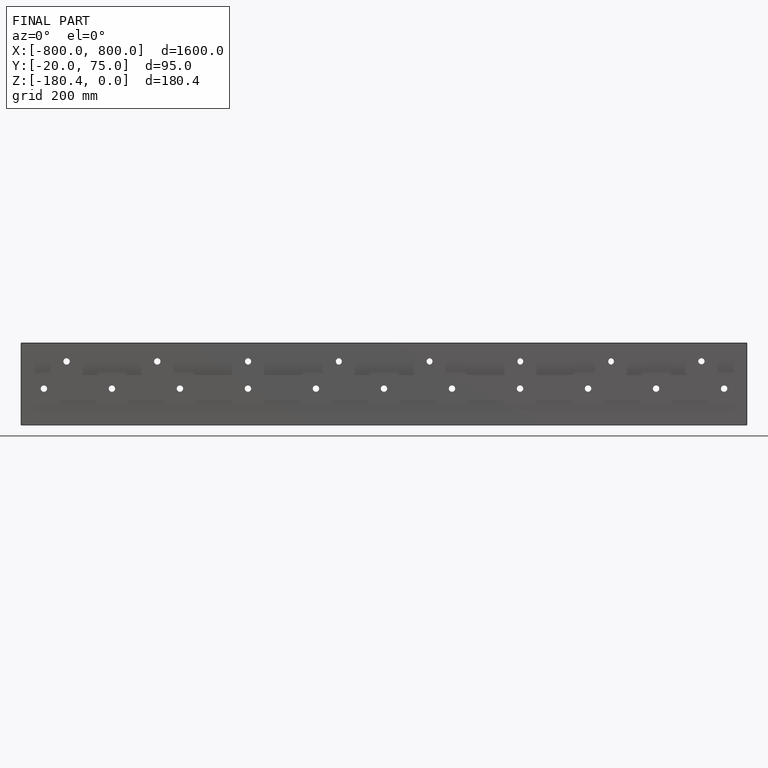
[diagram: finished part — front view with bounding-box wireframe]
